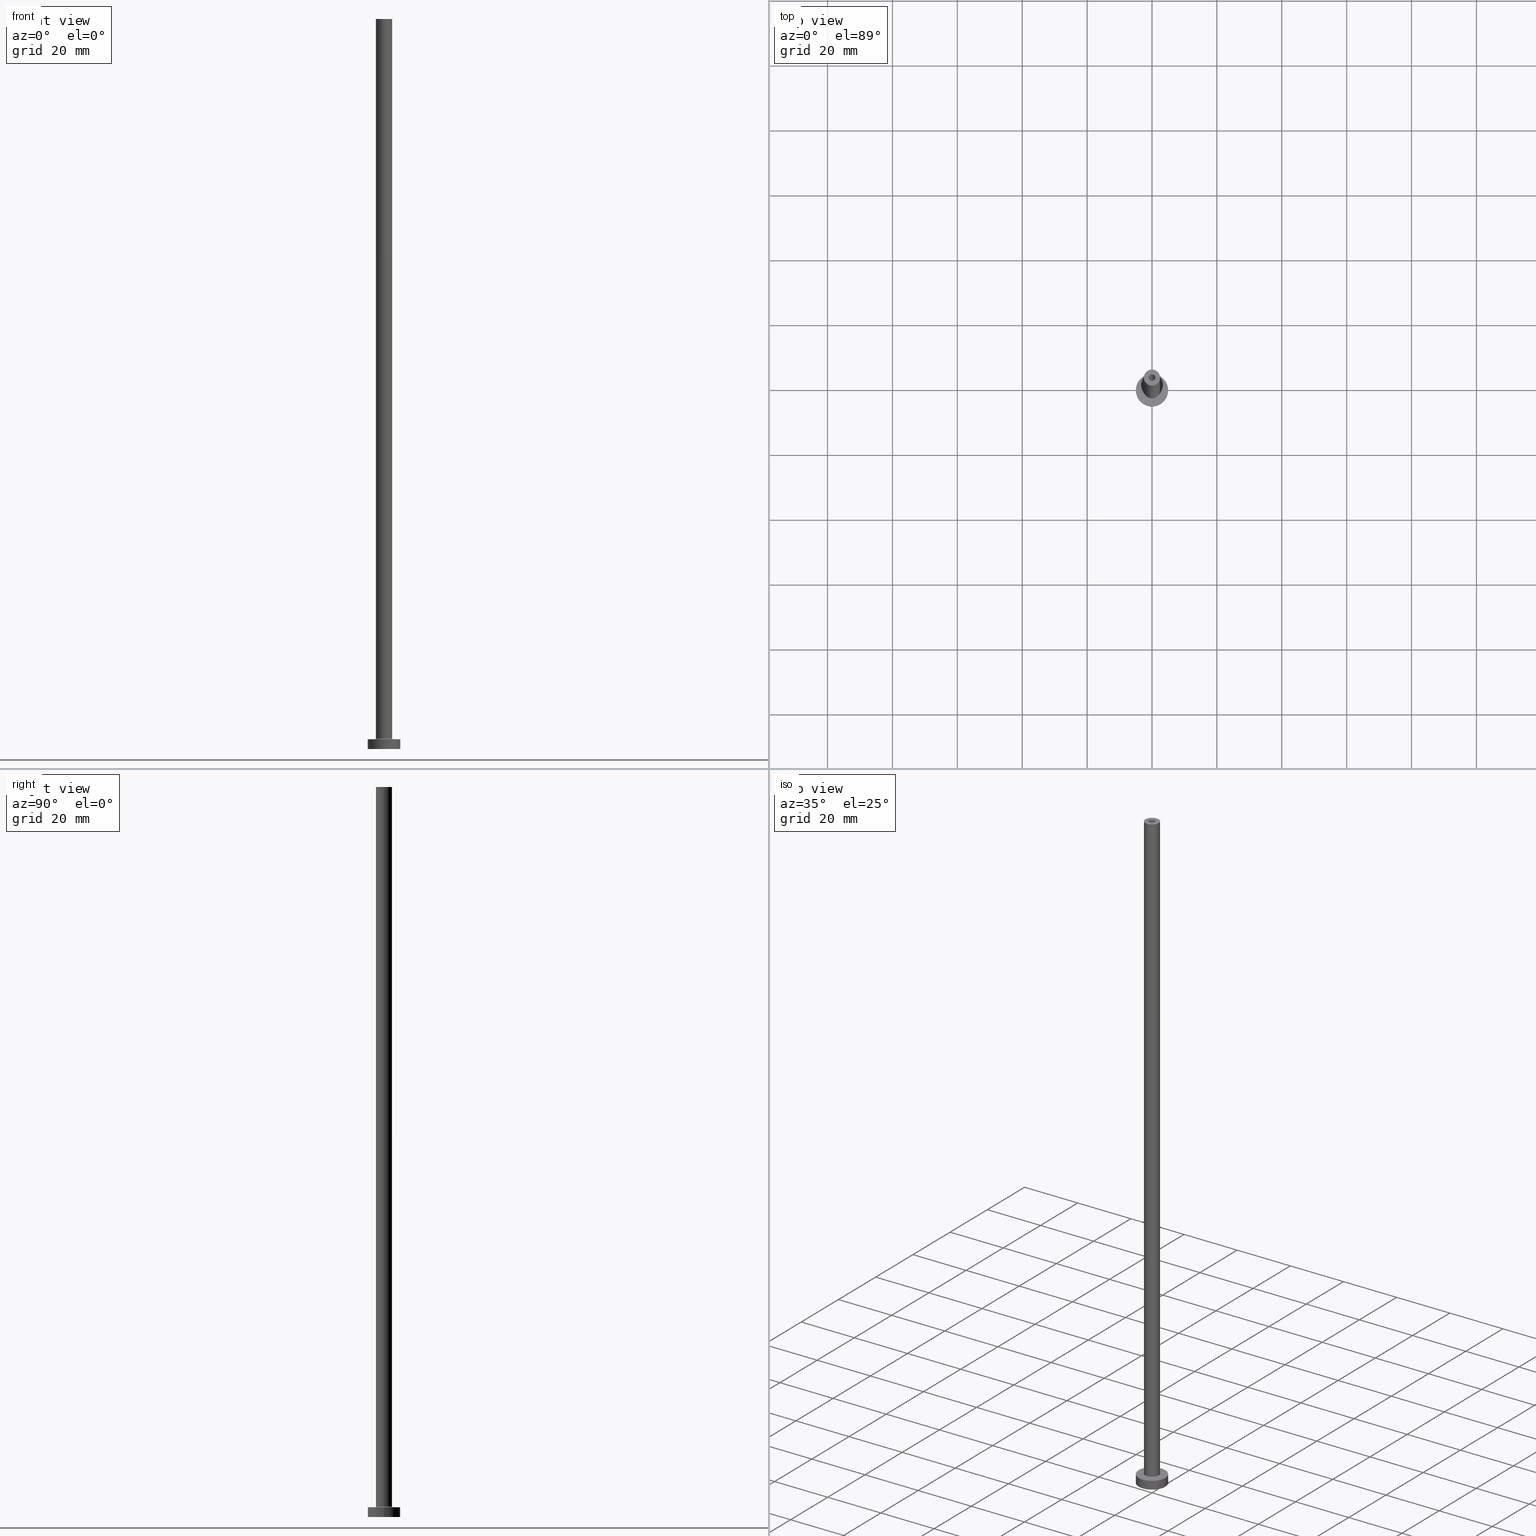
[diagram: canonical four-view strip — front | top / right | iso, engineering-drawing reading convention]
A machine part, canonical four-view strip (front | top / right | iso — engineering-drawing reading convention). The complete STEP part file that produces these views, byte-faithful:
ISO-10303-21;
HEADER;
FILE_DESCRIPTION (( 'STEP AP203' ),
    '1' );
FILE_NAME ('2feb.STEP',
    '2023-02-13T18:13:55',
    ( '' ),
    ( '' ),
    'SwSTEP 2.0',
    'SolidWorks 2019',
    '' );
FILE_SCHEMA (( 'CONFIG_CONTROL_DESIGN' ));
ENDSEC;

DATA;
#1 = AXIS2_PLACEMENT_3D ( 'NONE', #373, #50, #381 ) ;
#2 = DIRECTION ( 'NONE',  ( 0.000000000000000000, 0.000000000000000000, -1.000000000000000000 ) ) ;
#3 = AXIS2_PLACEMENT_3D ( 'NONE', #151, #295, #266 ) ;
#4 = CC_DESIGN_APPROVAL ( #297, ( #113 ) ) ;
#5 = APPROVAL_DATE_TIME ( #136, #297 ) ;
#6 = ORIENTED_EDGE ( 'NONE', *, *, #71, .T. ) ;
#7 = ADVANCED_FACE ( 'NONE', ( #75 ), #77, .F. ) ;
#8 = TOROIDAL_SURFACE ( 'NONE', #379, 2.799999999999999822, 0.2999999999999999889 ) ;
#9 = CIRCLE ( 'NONE', #39, 1.000000000000000000 ) ;
#10 = CARTESIAN_POINT ( 'NONE',  ( -1.000000000000000000, 0.000000000000000000, 225.0000000000000000 ) ) ;
#11 = DIRECTION ( 'NONE',  ( 0.000000000000000000, 0.000000000000000000, 1.000000000000000000 ) ) ;
#12 = CC_DESIGN_DATE_AND_TIME_ASSIGNMENT ( #422, #387, ( #267 ) ) ;
#13 = LINE ( 'NONE', #444, #212 ) ;
#14 = AXIS2_PLACEMENT_3D ( 'NONE', #447, #123, #420 ) ;
#15 = VERTEX_POINT ( 'NONE', #390 ) ;
#16 = CARTESIAN_POINT ( 'NONE',  ( -1.149999999999999911, 0.000000000000000000, 190.0000000000000000 ) ) ;
#17 = CARTESIAN_POINT ( 'NONE',  ( 5.000000000000000000, 6.123233995736766282E-16, 3.000000000000000000 ) ) ;
#18 = CARTESIAN_POINT ( 'NONE',  ( 5.000000000000000000, 6.123233995736766282E-16, 0.000000000000000000 ) ) ;
#19 = FACE_OUTER_BOUND ( 'NONE', #432, .T. ) ;
#20 = PERSON_AND_ORGANIZATION ( #180, #125 ) ;
#21 = CIRCLE ( 'NONE', #14, 2.799999999999999822 ) ;
#22 = CC_DESIGN_APPROVAL ( #423, ( #241 ) ) ;
#23 = FACE_OUTER_BOUND ( 'NONE', #178, .T. ) ;
#24 = CARTESIAN_POINT ( 'NONE',  ( 0.000000000000000000, 0.000000000000000000, 0.000000000000000000 ) ) ;
#25 = PERSON_AND_ORGANIZATION ( #180, #125 ) ;
#26 = ADVANCED_FACE ( 'NONE', ( #428, #211 ), #361, .F. ) ;
#27 = FACE_BOUND ( 'NONE', #351, .T. ) ;
#28 = COORDINATED_UNIVERSAL_TIME_OFFSET ( 1, 0, .AHEAD. ) ;
#29 = ADVANCED_FACE ( 'NONE', ( #132 ), #461, .T. ) ;
#30 = PERSON_AND_ORGANIZATION_ROLE ( 'creator' ) ;
#31 = ORIENTED_EDGE ( 'NONE', *, *, #367, .T. ) ;
#32 = CIRCLE ( 'NONE', #131, 2.500000000000000000 ) ;
#33 = DIRECTION ( 'NONE',  ( 1.000000000000000000, 0.000000000000000000, 0.000000000000000000 ) ) ;
#34 = EDGE_CURVE ( 'NONE', #231, #309, #255, .T. ) ;
#35 = DIRECTION ( 'NONE',  ( 1.000000000000000000, 0.000000000000000000, 0.000000000000000000 ) ) ;
#36 = VERTEX_POINT ( 'NONE', #18 ) ;
#37 = DIRECTION ( 'NONE',  ( 1.000000000000000000, 0.000000000000000000, 0.000000000000000000 ) ) ;
#38 = PERSON_AND_ORGANIZATION ( #180, #125 ) ;
#39 = AXIS2_PLACEMENT_3D ( 'NONE', #396, #410, #88 ) ;
#40 = ORIENTED_EDGE ( 'NONE', *, *, #57, .F. ) ;
#41 = ADVANCED_FACE ( 'NONE', ( #449 ), #254, .T. ) ;
#42 = CALENDAR_DATE ( 2023, 13, 2 ) ;
#43 = CARTESIAN_POINT ( 'NONE',  ( 1.000000000000000000, 1.224646799147353207E-16, 190.0000000000000000 ) ) ;
#44 = EDGE_LOOP ( 'NONE', ( #328, #439, #140, #101 ) ) ;
#45 = AXIS2_PLACEMENT_3D ( 'NONE', #325, #406, #213 ) ;
#46 = APPROVAL_PERSON_ORGANIZATION ( #38, #297, #429 ) ;
#47 = LINE ( 'NONE', #189, #456 ) ;
#48 = UNCERTAINTY_MEASURE_WITH_UNIT (LENGTH_MEASURE( 1.000000000000000082E-05 ), #166, 'distance_accuracy_value', 'NONE');
#49 = CARTESIAN_POINT ( 'NONE',  ( 0.000000000000000000, 0.000000000000000000, 0.000000000000000000 ) ) ;
#50 = DIRECTION ( 'NONE',  ( 0.000000000000000000, 0.000000000000000000, 1.000000000000000000 ) ) ;
#51 = LINE ( 'NONE', #335, #448 ) ;
#52 = DIRECTION ( 'NONE',  ( 0.000000000000000000, 0.000000000000000000, -1.000000000000000000 ) ) ;
#53 = DIRECTION ( 'NONE',  ( 0.000000000000000000, 0.000000000000000000, 1.000000000000000000 ) ) ;
#54 = DIRECTION ( 'NONE',  ( -1.000000000000000000, 0.000000000000000000, 0.000000000000000000 ) ) ;
#55 = CARTESIAN_POINT ( 'NONE',  ( 0.000000000000000000, 0.000000000000000000, 3.000000000000000000 ) ) ;
#56 = AXIS2_PLACEMENT_3D ( 'NONE', #265, #225, #33 ) ;
#57 = EDGE_CURVE ( 'NONE', #15, #110, #193, .T. ) ;
#58 = DIRECTION ( 'NONE',  ( -1.000000000000000000, 0.000000000000000000, 0.000000000000000000 ) ) ;
#59 = DIRECTION ( 'NONE',  ( -0.000000000000000000, -0.000000000000000000, -1.000000000000000000 ) ) ;
#60 = EDGE_LOOP ( 'NONE', ( #257, #179 ) ) ;
#61 = CALENDAR_DATE ( 2023, 13, 2 ) ;
#62 = DIRECTION ( 'NONE',  ( 1.000000000000000000, 0.000000000000000000, 0.000000000000000000 ) ) ;
#63 = DIRECTION ( 'NONE',  ( 0.000000000000000000, 0.000000000000000000, 1.000000000000000000 ) ) ;
#64 = PERSON_AND_ORGANIZATION_ROLE ( 'design_owner' ) ;
#65 = CARTESIAN_POINT ( 'NONE',  ( 0.000000000000000000, 0.000000000000000000, 190.0000000000000000 ) ) ;
#66 = DIRECTION ( 'NONE',  ( -1.000000000000000000, 0.000000000000000000, 0.000000000000000000 ) ) ;
#67 = CARTESIAN_POINT ( 'NONE',  ( 1.000000000000000000, 1.224646799147353207E-16, 225.0000000000000000 ) ) ;
#68 = ORIENTED_EDGE ( 'NONE', *, *, #362, .T. ) ;
#69 = DIRECTION ( 'NONE',  ( 0.000000000000000000, 0.000000000000000000, -1.000000000000000000 ) ) ;
#70 = AXIS2_PLACEMENT_3D ( 'NONE', #376, #53, #192 ) ;
#71 = EDGE_CURVE ( 'NONE', #433, #277, #51, .T. ) ;
#72 = ORIENTED_EDGE ( 'NONE', *, *, #259, .F. ) ;
#73 = CARTESIAN_POINT ( 'NONE',  ( 0.000000000000000000, 0.000000000000000000, 225.0000000000000000 ) ) ;
#74 = CARTESIAN_POINT ( 'NONE',  ( 5.000000000000000000, 6.123233995736766282E-16, 3.000000000000000000 ) ) ;
#75 = FACE_OUTER_BOUND ( 'NONE', #44, .T. ) ;
#76 = ORIENTED_EDGE ( 'NONE', *, *, #165, .T. ) ;
#77 = TOROIDAL_SURFACE ( 'NONE', #272, 2.799999999999999822, 0.2999999999999999889 ) ;
#78 = DIRECTION ( 'NONE',  ( 0.000000000000000000, 0.000000000000000000, 1.000000000000000000 ) ) ;
#79 = CARTESIAN_POINT ( 'NONE',  ( 0.000000000000000000, 0.000000000000000000, 3.299999999999997158 ) ) ;
#80 = AXIS2_PLACEMENT_3D ( 'NONE', #355, #168, #2 ) ;
#81 = VERTEX_POINT ( 'NONE', #345 ) ;
#82 = COORDINATED_UNIVERSAL_TIME_OFFSET ( 1, 0, .AHEAD. ) ;
#83 = DIRECTION ( 'NONE',  ( 1.000000000000000000, 0.000000000000000000, -0.000000000000000000 ) ) ;
#84 = DIRECTION ( 'NONE',  ( 1.000000000000000000, 0.000000000000000000, -0.000000000000000000 ) ) ;
#85 = DIRECTION ( 'NONE',  ( 1.000000000000000000, 0.000000000000000000, 0.000000000000000000 ) ) ;
#86 = DIRECTION ( 'NONE',  ( -1.000000000000000000, 0.000000000000000000, 0.000000000000000000 ) ) ;
#87 = DIRECTION ( 'NONE',  ( 0.000000000000000000, 0.000000000000000000, 1.000000000000000000 ) ) ;
#88 = DIRECTION ( 'NONE',  ( 1.000000000000000000, 0.000000000000000000, 0.000000000000000000 ) ) ;
#89 = CARTESIAN_POINT ( 'NONE',  ( 0.000000000000000000, 0.000000000000000000, 3.299999999999997158 ) ) ;
#90 = CIRCLE ( 'NONE', #369, 1.149999999999999911 ) ;
#91 = VERTEX_POINT ( 'NONE', #269 ) ;
#92 = DIRECTION ( 'NONE',  ( 1.000000000000000000, 0.000000000000000000, 0.000000000000000000 ) ) ;
#93 = CYLINDRICAL_SURFACE ( 'NONE', #268, 1.000000000000000000 ) ;
#94 = ORIENTED_EDGE ( 'NONE', *, *, #234, .T. ) ;
#95 = DIRECTION ( 'NONE',  ( -1.000000000000000000, 0.000000000000000000, 0.000000000000000000 ) ) ;
#96 = CIRCLE ( 'NONE', #80, 0.2999999999999999334 ) ;
#97 = DIRECTION ( 'NONE',  ( 1.000000000000000000, 0.000000000000000000, 0.000000000000000000 ) ) ;
#98 = CARTESIAN_POINT ( 'NONE',  ( 0.000000000000000000, 0.000000000000000000, 0.000000000000000000 ) ) ;
#99 = VECTOR ( 'NONE', #135, 1000.000000000000000 ) ;
#100 = ORIENTED_EDGE ( 'NONE', *, *, #171, .F. ) ;
#101 = ORIENTED_EDGE ( 'NONE', *, *, #340, .F. ) ;
#102 = ORIENTED_EDGE ( 'NONE', *, *, #120, .F. ) ;
#103 = DIRECTION ( 'NONE',  ( 0.000000000000000000, 0.000000000000000000, 1.000000000000000000 ) ) ;
#104 = VERTEX_POINT ( 'NONE', #67 ) ;
#105 = CARTESIAN_POINT ( 'NONE',  ( 0.000000000000000000, 0.000000000000000000, 190.0000000000000000 ) ) ;
#106 = EDGE_LOOP ( 'NONE', ( #249, #378, #452, #236 ) ) ;
#107 = ORIENTED_EDGE ( 'NONE', *, *, #34, .T. ) ;
#108 = ADVANCED_FACE ( 'NONE', ( #23 ), #202, .T. ) ;
#109 = ORIENTED_EDGE ( 'NONE', *, *, #366, .T. ) ;
#110 = VERTEX_POINT ( 'NONE', #446 ) ;
#111 = AXIS2_PLACEMENT_3D ( 'NONE', #49, #87, #227 ) ;
#112 = EDGE_LOOP ( 'NONE', ( #102, #153, #237, #294 ) ) ;
#113 = SECURITY_CLASSIFICATION ( '', '', #435 ) ;
#114 = EDGE_CURVE ( 'NONE', #134, #81, #330, .T. ) ;
#115 = PRODUCT_DEFINITION_SHAPE ( 'NONE', 'NONE',  #267 ) ;
#116 = FACE_BOUND ( 'NONE', #245, .T. ) ;
#117 = AXIS2_PLACEMENT_3D ( 'NONE', #105, #289, #35 ) ;
#118 = CARTESIAN_POINT ( 'NONE',  ( -2.500000000000000000, 0.000000000000000000, 225.0000000000000000 ) ) ;
#119 = DIRECTION ( 'NONE',  ( -0.000000000000000000, -0.000000000000000000, -1.000000000000000000 ) ) ;
#120 = EDGE_CURVE ( 'NONE', #183, #433, #139, .T. ) ;
#121 = DIRECTION ( 'NONE',  ( 0.000000000000000000, 0.000000000000000000, 1.000000000000000000 ) ) ;
#122 = CYLINDRICAL_SURFACE ( 'NONE', #251, 1.149999999999999911 ) ;
#123 = DIRECTION ( 'NONE',  ( -0.000000000000000000, -0.000000000000000000, -1.000000000000000000 ) ) ;
#124 = ORIENTED_EDGE ( 'NONE', *, *, #214, .F. ) ;
#125 = ORGANIZATION ( 'NEUR�EN�', 'NEUR�EN�', '' ) ;
#126 = COORDINATED_UNIVERSAL_TIME_OFFSET ( 1, 0, .AHEAD. ) ;
#127 = CARTESIAN_POINT ( 'NONE',  ( 0.000000000000000000, 0.000000000000000000, 3.299999999999997158 ) ) ;
#128 = APPROVAL_STATUS ( 'not_yet_approved' ) ;
#129 = ADVANCED_BREP_SHAPE_REPRESENTATION ( '2feb', ( #391, #111 ), #306 ) ;
#130 = APPROVAL_DATE_TIME ( #457, #389 ) ;
#131 = AXIS2_PLACEMENT_3D ( 'NONE', #141, #210, #37 ) ;
#132 = FACE_OUTER_BOUND ( 'NONE', #442, .T. ) ;
#133 = ORIENTED_EDGE ( 'NONE', *, *, #171, .T. ) ;
#134 = VERTEX_POINT ( 'NONE', #188 ) ;
#135 = DIRECTION ( 'NONE',  ( -0.000000000000000000, -0.000000000000000000, -1.000000000000000000 ) ) ;
#136 = DATE_AND_TIME ( #238, #175 ) ;
#137 = PLANE ( 'NONE',  #440 ) ;
#138 = CARTESIAN_POINT ( 'NONE',  ( 0.000000000000000000, 0.000000000000000000, 3.000000000000000000 ) ) ;
#139 = CIRCLE ( 'NONE', #1, 5.000000000000000000 ) ;
#140 = ORIENTED_EDGE ( 'NONE', *, *, #367, .F. ) ;
#141 = CARTESIAN_POINT ( 'NONE',  ( 0.000000000000000000, 0.000000000000000000, 3.299999999999997158 ) ) ;
#142 = CARTESIAN_POINT ( 'NONE',  ( -2.799999999999999822, 3.429011037612589276E-16, 2.999999999999998668 ) ) ;
#143 = ADVANCED_FACE ( 'NONE', ( #222 ), #122, .F. ) ;
#144 = VECTOR ( 'NONE', #69, 1000.000000000000000 ) ;
#145 = PERSON_AND_ORGANIZATION_ROLE ( 'creator' ) ;
#146 = DIRECTION ( 'NONE',  ( -1.000000000000000000, 0.000000000000000000, 0.000000000000000000 ) ) ;
#147 = EDGE_LOOP ( 'NONE', ( #292, #109, #453, #72 ) ) ;
#148 = DIRECTION ( 'NONE',  ( 0.000000000000000000, 0.000000000000000000, -1.000000000000000000 ) ) ;
#149 = CARTESIAN_POINT ( 'NONE',  ( -5.000000000000000000, 0.000000000000000000, 3.000000000000000000 ) ) ;
#150 = AXIS2_PLACEMENT_3D ( 'NONE', #302, #11, #299 ) ;
#151 = CARTESIAN_POINT ( 'NONE',  ( 0.000000000000000000, 0.000000000000000000, 225.0000000000000000 ) ) ;
#152 = EDGE_CURVE ( 'NONE', #169, #231, #191, .T. ) ;
#153 = ORIENTED_EDGE ( 'NONE', *, *, #436, .T. ) ;
#154 = FACE_OUTER_BOUND ( 'NONE', #293, .T. ) ;
#155 = DIRECTION ( 'NONE',  ( -0.000000000000000000, -0.000000000000000000, -1.000000000000000000 ) ) ;
#156 = CIRCLE ( 'NONE', #284, 1.000000000000000000 ) ;
#157 = CARTESIAN_POINT ( 'NONE',  ( 0.000000000000000000, 0.000000000000000000, 190.0000000000000000 ) ) ;
#158 = DIRECTION ( 'NONE',  ( 0.000000000000000000, 0.000000000000000000, -1.000000000000000000 ) ) ;
#159 = CARTESIAN_POINT ( 'NONE',  ( -1.000000000000000000, 0.000000000000000000, 190.0000000000000000 ) ) ;
#160 = CIRCLE ( 'NONE', #424, 1.000000000000000000 ) ;
#161 = CALENDAR_DATE ( 2023, 13, 2 ) ;
#162 = EDGE_CURVE ( 'NONE', #277, #36, #275, .T. ) ;
#163 = EDGE_CURVE ( 'NONE', #81, #110, #368, .T. ) ;
#164 = ORIENTED_EDGE ( 'NONE', *, *, #418, .T. ) ;
#165 = EDGE_CURVE ( 'NONE', #134, #15, #415, .T. ) ;
#166 =( LENGTH_UNIT ( ) NAMED_UNIT ( * ) SI_UNIT ( .MILLI., .METRE. ) );
#167 = PERSON_AND_ORGANIZATION ( #180, #125 ) ;
#168 = DIRECTION ( 'NONE',  ( 0.000000000000000000, -1.000000000000000000, 0.000000000000000000 ) ) ;
#169 = VERTEX_POINT ( 'NONE', #337 ) ;
#170 = ORIENTED_EDGE ( 'NONE', *, *, #162, .T. ) ;
#171 = EDGE_CURVE ( 'NONE', #309, #231, #156, .T. ) ;
#172 = ORIENTED_EDGE ( 'NONE', *, *, #418, .F. ) ;
#173 = DATE_AND_TIME ( #42, #286 ) ;
#174 = AXIS2_PLACEMENT_3D ( 'NONE', #197, #346, #334 ) ;
#175 = LOCAL_TIME ( 19, 13, 55.00000000000000000, #82 ) ;
#176 = DIRECTION ( 'NONE',  ( -0.000000000000000000, -0.000000000000000000, -1.000000000000000000 ) ) ;
#177 = DIRECTION ( 'NONE',  ( -1.000000000000000000, 1.224646799147353207E-16, 0.000000000000000000 ) ) ;
#178 = EDGE_LOOP ( 'NONE', ( #228, #76, #397, #347 ) ) ;
#179 = ORIENTED_EDGE ( 'NONE', *, *, #114, .T. ) ;
#180 = PERSON ( 'NEUR�EN�', 'NEUR�EN�', 'NEUR�EN�', ('NEUR�EN�'), ('NEUR�EN�'), ('NEUR�EN�') ) ;
#181 = FACE_BOUND ( 'NONE', #358, .T. ) ;
#182 = AXIS2_PLACEMENT_3D ( 'NONE', #138, #426, #58 ) ;
#183 = VERTEX_POINT ( 'NONE', #17 ) ;
#184 = AXIS2_PLACEMENT_3D ( 'NONE', #55, #119, #223 ) ;
#185 = CARTESIAN_POINT ( 'NONE',  ( 0.000000000000000000, 0.000000000000000000, 225.0000000000000000 ) ) ;
#186 = PRODUCT ( '2feb', '2feb', '', ( #372 ) ) ;
#187 = ADVANCED_FACE ( 'NONE', ( #253 ), #216, .T. ) ;
#188 = CARTESIAN_POINT ( 'NONE',  ( 2.500000000000000000, 3.061616997868383141E-16, 225.0000000000000000 ) ) ;
#189 = CARTESIAN_POINT ( 'NONE',  ( 1.149999999999999911, 1.408343819019456028E-16, 193.2526911934581051 ) ) ;
#190 = DIRECTION ( 'NONE',  ( 1.000000000000000000, 0.000000000000000000, 0.000000000000000000 ) ) ;
#191 = LINE ( 'NONE', #10, #226 ) ;
#192 = DIRECTION ( 'NONE',  ( 1.000000000000000000, 0.000000000000000000, -0.000000000000000000 ) ) ;
#193 = CIRCLE ( 'NONE', #313, 2.500000000000000000 ) ;
#194 = CC_DESIGN_PERSON_AND_ORGANIZATION_ASSIGNMENT ( #278, #30, ( #267 ) ) ;
#195 = DIRECTION ( 'NONE',  ( 0.000000000000000000, 0.000000000000000000, 1.000000000000000000 ) ) ;
#196 = DATE_AND_TIME ( #61, #414 ) ;
#197 = CARTESIAN_POINT ( 'NONE',  ( 0.000000000000000000, 0.000000000000000000, 0.000000000000000000 ) ) ;
#198 = APPLICATION_PROTOCOL_DEFINITION ( 'international standard', 'config_control_design', 1994, #409 ) ;
#199 = APPROVAL_STATUS ( 'not_yet_approved' ) ;
#200 = EDGE_CURVE ( 'NONE', #91, #279, #90, .T. ) ;
#201 = ORIENTED_EDGE ( 'NONE', *, *, #340, .T. ) ;
#202 = CYLINDRICAL_SURFACE ( 'NONE', #365, 2.500000000000000000 ) ;
#203 = FACE_OUTER_BOUND ( 'NONE', #326, .T. ) ;
#204 = CC_DESIGN_APPROVAL ( #389, ( #267 ) ) ;
#205 = ORIENTED_EDGE ( 'NONE', *, *, #120, .T. ) ;
#206 = CARTESIAN_POINT ( 'NONE',  ( 2.799999999999999822, 0.000000000000000000, 2.999999999999998668 ) ) ;
#207 = CC_DESIGN_DATE_AND_TIME_ASSIGNMENT ( #173, #243, ( #113 ) ) ;
#208 = ORIENTED_EDGE ( 'NONE', *, *, #377, .T. ) ;
#209 = EDGE_LOOP ( 'NONE', ( #68, #370, #252, #388 ) ) ;
#210 = DIRECTION ( 'NONE',  ( 0.000000000000000000, 0.000000000000000000, 1.000000000000000000 ) ) ;
#211 = FACE_OUTER_BOUND ( 'NONE', #262, .T. ) ;
#212 = VECTOR ( 'NONE', #264, 1000.000000000000000 ) ;
#213 = DIRECTION ( 'NONE',  ( -1.000000000000000000, 0.000000000000000000, 0.000000000000000000 ) ) ;
#214 = EDGE_CURVE ( 'NONE', #36, #277, #235, .T. ) ;
#215 = SHAPE_DEFINITION_REPRESENTATION ( #115, #129 ) ;
#216 = CYLINDRICAL_SURFACE ( 'NONE', #3, 2.500000000000000000 ) ;
#217 = AXIS2_PLACEMENT_3D ( 'NONE', #261, #296, #333 ) ;
#218 = APPROVAL_PERSON_ORGANIZATION ( #230, #423, #383 ) ;
#219 = ADVANCED_FACE ( 'NONE', ( #19 ), #8, .F. ) ;
#220 = CARTESIAN_POINT ( 'NONE',  ( 0.000000000000000000, 0.000000000000000000, 225.0000000000000000 ) ) ;
#221 = CARTESIAN_POINT ( 'NONE',  ( 0.000000000000000000, 0.000000000000000000, 3.000000000000000000 ) ) ;
#222 = FACE_OUTER_BOUND ( 'NONE', #419, .T. ) ;
#223 = DIRECTION ( 'NONE',  ( 1.000000000000000000, 0.000000000000000000, 0.000000000000000000 ) ) ;
#224 = ORIENTED_EDGE ( 'NONE', *, *, #398, .T. ) ;
#225 = DIRECTION ( 'NONE',  ( 0.000000000000000000, 0.000000000000000000, 1.000000000000000000 ) ) ;
#226 = VECTOR ( 'NONE', #158, 1000.000000000000000 ) ;
#227 = DIRECTION ( 'NONE',  ( 1.000000000000000000, 0.000000000000000000, 0.000000000000000000 ) ) ;
#228 = ORIENTED_EDGE ( 'NONE', *, *, #114, .F. ) ;
#229 = CC_DESIGN_PERSON_AND_ORGANIZATION_ASSIGNMENT ( #167, #404, ( #113 ) ) ;
#230 = PERSON_AND_ORGANIZATION ( #180, #125 ) ;
#231 = VERTEX_POINT ( 'NONE', #159 ) ;
#232 = DIRECTION ( 'NONE',  ( 1.000000000000000000, 0.000000000000000000, 0.000000000000000000 ) ) ;
#233 = CLOSED_SHELL ( 'NONE', ( #303, #307, #7, #108, #41, #29, #425, #318, #187, #382, #219, #143, #26, #250 ) ) ;
#234 = EDGE_CURVE ( 'NONE', #279, #91, #405, .T. ) ;
#235 = CIRCLE ( 'NONE', #258, 5.000000000000000000 ) ;
#236 = ORIENTED_EDGE ( 'NONE', *, *, #430, .T. ) ;
#237 = ORIENTED_EDGE ( 'NONE', *, *, #214, .T. ) ;
#238 = CALENDAR_DATE ( 2023, 13, 2 ) ;
#239 = CIRCLE ( 'NONE', #184, 2.799999999999999822 ) ;
#240 = DIRECTION ( 'NONE',  ( 1.000000000000000000, 0.000000000000000000, 0.000000000000000000 ) ) ;
#241 = PRODUCT_DEFINITION_FORMATION_WITH_SPECIFIED_SOURCE ( 'LIBOVOLN�', '', #186, .NOT_KNOWN. ) ;
#242 = VERTEX_POINT ( 'NONE', #16 ) ;
#243 = DATE_TIME_ROLE ( 'classification_date' ) ;
#244 = CARTESIAN_POINT ( 'NONE',  ( 0.000000000000000000, 0.000000000000000000, 0.000000000000000000 ) ) ;
#245 = EDGE_LOOP ( 'NONE', ( #317, #320 ) ) ;
#246 = CARTESIAN_POINT ( 'NONE',  ( -1.149999999999999911, 0.000000000000000000, 0.000000000000000000 ) ) ;
#247 = CARTESIAN_POINT ( 'NONE',  ( 0.000000000000000000, 0.000000000000000000, 225.0000000000000000 ) ) ;
#248 = PERSON_AND_ORGANIZATION_ROLE ( 'design_supplier' ) ;
#249 = ORIENTED_EDGE ( 'NONE', *, *, #165, .F. ) ;
#250 = ADVANCED_FACE ( 'NONE', ( #154 ), #93, .F. ) ;
#251 = AXIS2_PLACEMENT_3D ( 'NONE', #260, #52, #54 ) ;
#252 = ORIENTED_EDGE ( 'NONE', *, *, #34, .F. ) ;
#253 = FACE_OUTER_BOUND ( 'NONE', #106, .T. ) ;
#254 = CYLINDRICAL_SURFACE ( 'NONE', #392, 5.000000000000000000 ) ;
#255 = CIRCLE ( 'NONE', #342, 1.000000000000000000 ) ;
#256 = DIRECTION ( 'NONE',  ( 1.000000000000000000, 0.000000000000000000, 0.000000000000000000 ) ) ;
#257 = ORIENTED_EDGE ( 'NONE', *, *, #350, .T. ) ;
#258 = AXIS2_PLACEMENT_3D ( 'NONE', #98, #63, #97 ) ;
#259 = EDGE_CURVE ( 'NONE', #242, #279, #316, .T. ) ;
#260 = CARTESIAN_POINT ( 'NONE',  ( 0.000000000000000000, 0.000000000000000000, 193.2526911934581051 ) ) ;
#261 = CARTESIAN_POINT ( 'NONE',  ( 0.000000000000000000, 0.000000000000000000, 3.000000000000000000 ) ) ;
#262 = EDGE_LOOP ( 'NONE', ( #349, #172 ) ) ;
#263 = CARTESIAN_POINT ( 'NONE',  ( 0.000000000000000000, 0.000000000000000000, 190.0000000000000000 ) ) ;
#264 = DIRECTION ( 'NONE',  ( 0.000000000000000000, 0.000000000000000000, -1.000000000000000000 ) ) ;
#265 = CARTESIAN_POINT ( 'NONE',  ( 0.000000000000000000, 0.000000000000000000, 190.0000000000000000 ) ) ;
#266 = DIRECTION ( 'NONE',  ( -1.000000000000000000, 0.000000000000000000, 0.000000000000000000 ) ) ;
#267 = PRODUCT_DEFINITION ( 'NEZN�M�', '', #241, #411 ) ;
#268 = AXIS2_PLACEMENT_3D ( 'NONE', #220, #273, #66 ) ;
#269 = CARTESIAN_POINT ( 'NONE',  ( 1.149999999999999911, 1.408343819019456028E-16, 0.000000000000000000 ) ) ;
#270 = DIRECTION ( 'NONE',  ( 0.000000000000000000, 0.000000000000000000, 1.000000000000000000 ) ) ;
#271 = APPROVAL_ROLE ( '' ) ;
#272 = AXIS2_PLACEMENT_3D ( 'NONE', #79, #393, #403 ) ;
#273 = DIRECTION ( 'NONE',  ( 0.000000000000000000, 0.000000000000000000, -1.000000000000000000 ) ) ;
#274 = VERTEX_POINT ( 'NONE', #206 ) ;
#275 = CIRCLE ( 'NONE', #150, 5.000000000000000000 ) ;
#276 = COORDINATED_UNIVERSAL_TIME_OFFSET ( 1, 0, .AHEAD. ) ;
#277 = VERTEX_POINT ( 'NONE', #407 ) ;
#278 = PERSON_AND_ORGANIZATION ( #180, #125 ) ;
#279 = VERTEX_POINT ( 'NONE', #246 ) ;
#280 = CARTESIAN_POINT ( 'NONE',  ( -2.799999999999999822, 3.429011037612588783E-16, 3.299999999999997158 ) ) ;
#281 = EDGE_CURVE ( 'NONE', #104, #169, #160, .T. ) ;
#282 = AXIS2_PLACEMENT_3D ( 'NONE', #185, #341, #256 ) ;
#283 = PERSON_AND_ORGANIZATION ( #180, #125 ) ;
#284 = AXIS2_PLACEMENT_3D ( 'NONE', #157, #121, #92 ) ;
#285 = CARTESIAN_POINT ( 'NONE',  ( 1.149999999999999911, 1.408343819019456028E-16, 190.0000000000000000 ) ) ;
#286 = LOCAL_TIME ( 19, 13, 55.00000000000000000, #459 ) ;
#287 = ORIENTED_EDGE ( 'NONE', *, *, #200, .F. ) ;
#288 = FACE_OUTER_BOUND ( 'NONE', #209, .T. ) ;
#289 = DIRECTION ( 'NONE',  ( 0.000000000000000000, 0.000000000000000000, 1.000000000000000000 ) ) ;
#290 = EDGE_CURVE ( 'NONE', #242, #329, #413, .T. ) ;
#291 = CYLINDRICAL_SURFACE ( 'NONE', #431, 1.149999999999999911 ) ;
#292 = ORIENTED_EDGE ( 'NONE', *, *, #290, .T. ) ;
#293 = EDGE_LOOP ( 'NONE', ( #434, #400, #348, #100 ) ) ;
#294 = ORIENTED_EDGE ( 'NONE', *, *, #71, .F. ) ;
#295 = DIRECTION ( 'NONE',  ( -0.000000000000000000, -0.000000000000000000, -1.000000000000000000 ) ) ;
#296 = DIRECTION ( 'NONE',  ( 0.000000000000000000, 0.000000000000000000, 1.000000000000000000 ) ) ;
#297 = APPROVAL ( #319, 'NEUR�EN�' ) ;
#298 = APPLICATION_CONTEXT ( 'configuration controlled 3d designs of mechanical parts and assemblies' ) ;
#299 = DIRECTION ( 'NONE',  ( 1.000000000000000000, 0.000000000000000000, 0.000000000000000000 ) ) ;
#300 = FACE_OUTER_BOUND ( 'NONE', #60, .T. ) ;
#301 = AXIS2_PLACEMENT_3D ( 'NONE', #312, #305, #83 ) ;
#302 = CARTESIAN_POINT ( 'NONE',  ( 0.000000000000000000, 0.000000000000000000, 0.000000000000000000 ) ) ;
#303 = ADVANCED_FACE ( 'NONE', ( #288 ), #402, .F. ) ;
#304 = CARTESIAN_POINT ( 'NONE',  ( 2.500000000000000000, 3.061616997868383141E-16, 225.0000000000000000 ) ) ;
#305 = DIRECTION ( 'NONE',  ( 0.000000000000000000, 0.000000000000000000, 1.000000000000000000 ) ) ;
#306 =( GEOMETRIC_REPRESENTATION_CONTEXT ( 3 ) GLOBAL_UNCERTAINTY_ASSIGNED_CONTEXT ( ( #48 ) ) GLOBAL_UNIT_ASSIGNED_CONTEXT ( ( #166, #357, #445 ) ) REPRESENTATION_CONTEXT ( 'NONE', 'WORKASPACE' ) );
#307 = ADVANCED_FACE ( 'NONE', ( #327 ), #291, .F. ) ;
#308 = ORIENTED_EDGE ( 'NONE', *, *, #436, .F. ) ;
#309 = VERTEX_POINT ( 'NONE', #43 ) ;
#310 = DIRECTION ( 'NONE',  ( -0.000000000000000000, -0.000000000000000000, -1.000000000000000000 ) ) ;
#311 = VERTEX_POINT ( 'NONE', #142 ) ;
#312 = CARTESIAN_POINT ( 'NONE',  ( 0.000000000000000000, 0.000000000000000000, 3.000000000000000000 ) ) ;
#313 = AXIS2_PLACEMENT_3D ( 'NONE', #89, #374, #371 ) ;
#314 = APPROVAL_PERSON_ORGANIZATION ( #25, #389, #271 ) ;
#315 = EDGE_LOOP ( 'NONE', ( #107, #133 ) ) ;
#316 = LINE ( 'NONE', #394, #144 ) ;
#317 = ORIENTED_EDGE ( 'NONE', *, *, #362, .F. ) ;
#318 = ADVANCED_FACE ( 'NONE', ( #181, #322 ), #137, .F. ) ;
#319 = APPROVAL_STATUS ( 'not_yet_approved' ) ;
#320 = ORIENTED_EDGE ( 'NONE', *, *, #281, .F. ) ;
#321 = ORIENTED_EDGE ( 'NONE', *, *, #259, .T. ) ;
#322 = FACE_OUTER_BOUND ( 'NONE', #401, .T. ) ;
#323 = DIRECTION ( 'NONE',  ( 1.224646799147353207E-16, 1.000000000000000000, -0.000000000000000000 ) ) ;
#324 = CIRCLE ( 'NONE', #395, 2.500000000000000000 ) ;
#325 = CARTESIAN_POINT ( 'NONE',  ( 0.000000000000000000, 0.000000000000000000, 225.0000000000000000 ) ) ;
#326 = EDGE_LOOP ( 'NONE', ( #208, #205 ) ) ;
#327 = FACE_OUTER_BOUND ( 'NONE', #147, .T. ) ;
#328 = ORIENTED_EDGE ( 'NONE', *, *, #430, .F. ) ;
#329 = VERTEX_POINT ( 'NONE', #285 ) ;
#330 = CIRCLE ( 'NONE', #282, 2.500000000000000000 ) ;
#331 = LOCAL_TIME ( 19, 13, 55.00000000000000000, #28 ) ;
#332 = DIRECTION ( 'NONE',  ( 0.000000000000000000, 0.000000000000000000, -1.000000000000000000 ) ) ;
#333 = DIRECTION ( 'NONE',  ( 1.000000000000000000, 0.000000000000000000, 0.000000000000000000 ) ) ;
#334 = DIRECTION ( 'NONE',  ( 1.000000000000000000, 0.000000000000000000, 0.000000000000000000 ) ) ;
#335 = CARTESIAN_POINT ( 'NONE',  ( -5.000000000000000000, 0.000000000000000000, 3.000000000000000000 ) ) ;
#336 = AXIS2_PLACEMENT_3D ( 'NONE', #65, #455, #356 ) ;
#337 = CARTESIAN_POINT ( 'NONE',  ( -1.000000000000000000, 0.000000000000000000, 225.0000000000000000 ) ) ;
#338 = CC_DESIGN_PERSON_AND_ORGANIZATION_ASSIGNMENT ( #386, #64, ( #186 ) ) ;
#339 = CIRCLE ( 'NONE', #56, 1.149999999999999911 ) ;
#340 = EDGE_CURVE ( 'NONE', #15, #274, #96, .T. ) ;
#341 = DIRECTION ( 'NONE',  ( 0.000000000000000000, 0.000000000000000000, 1.000000000000000000 ) ) ;
#342 = AXIS2_PLACEMENT_3D ( 'NONE', #263, #195, #190 ) ;
#343 = APPROVAL_DATE_TIME ( #196, #423 ) ;
#344 = VECTOR ( 'NONE', #375, 1000.000000000000000 ) ;
#345 = CARTESIAN_POINT ( 'NONE',  ( -2.500000000000000000, 0.000000000000000000, 225.0000000000000000 ) ) ;
#346 = DIRECTION ( 'NONE',  ( -0.000000000000000000, -0.000000000000000000, -1.000000000000000000 ) ) ;
#347 = ORIENTED_EDGE ( 'NONE', *, *, #163, .F. ) ;
#348 = ORIENTED_EDGE ( 'NONE', *, *, #152, .T. ) ;
#349 = ORIENTED_EDGE ( 'NONE', *, *, #290, .F. ) ;
#350 = EDGE_CURVE ( 'NONE', #81, #134, #324, .T. ) ;
#351 = EDGE_LOOP ( 'NONE', ( #31, #224 ) ) ;
#352 = CC_DESIGN_PERSON_AND_ORGANIZATION_ASSIGNMENT ( #283, #248, ( #241 ) ) ;
#353 = LOCAL_TIME ( 19, 13, 55.00000000000000000, #126 ) ;
#354 = PLANE ( 'NONE',  #301 ) ;
#355 = CARTESIAN_POINT ( 'NONE',  ( 2.799999999999999822, 0.000000000000000000, 3.299999999999997158 ) ) ;
#356 = DIRECTION ( 'NONE',  ( 1.000000000000000000, 0.000000000000000000, -0.000000000000000000 ) ) ;
#357 =( NAMED_UNIT ( * ) PLANE_ANGLE_UNIT ( ) SI_UNIT ( $, .RADIAN. ) );
#358 = EDGE_LOOP ( 'NONE', ( #384, #287 ) ) ;
#359 = DIRECTION ( 'NONE',  ( 0.000000000000000000, 0.000000000000000000, 1.000000000000000000 ) ) ;
#360 = CIRCLE ( 'NONE', #451, 0.2999999999999999334 ) ;
#361 = PLANE ( 'NONE',  #336 ) ;
#362 = EDGE_CURVE ( 'NONE', #169, #104, #9, .T. ) ;
#363 = ORIENTED_EDGE ( 'NONE', *, *, #450, .F. ) ;
#364 = LINE ( 'NONE', #74, #99 ) ;
#365 = AXIS2_PLACEMENT_3D ( 'NONE', #247, #176, #95 ) ;
#366 = EDGE_CURVE ( 'NONE', #329, #91, #47, .T. ) ;
#367 = EDGE_CURVE ( 'NONE', #274, #311, #239, .T. ) ;
#368 = LINE ( 'NONE', #118, #421 ) ;
#369 = AXIS2_PLACEMENT_3D ( 'NONE', #24, #310, #62 ) ;
#370 = ORIENTED_EDGE ( 'NONE', *, *, #385, .T. ) ;
#371 = DIRECTION ( 'NONE',  ( 1.000000000000000000, 0.000000000000000000, 0.000000000000000000 ) ) ;
#372 = MECHANICAL_CONTEXT ( 'NONE', #298, 'mechanical' ) ;
#373 = CARTESIAN_POINT ( 'NONE',  ( 0.000000000000000000, 0.000000000000000000, 3.000000000000000000 ) ) ;
#374 = DIRECTION ( 'NONE',  ( 0.000000000000000000, 0.000000000000000000, 1.000000000000000000 ) ) ;
#375 = DIRECTION ( 'NONE',  ( -0.000000000000000000, -0.000000000000000000, -1.000000000000000000 ) ) ;
#376 = CARTESIAN_POINT ( 'NONE',  ( 0.000000000000000000, 0.000000000000000000, 225.0000000000000000 ) ) ;
#377 = EDGE_CURVE ( 'NONE', #433, #183, #437, .T. ) ;
#378 = ORIENTED_EDGE ( 'NONE', *, *, #350, .F. ) ;
#379 = AXIS2_PLACEMENT_3D ( 'NONE', #127, #270, #232 ) ;
#380 = CC_DESIGN_SECURITY_CLASSIFICATION ( #113, ( #241 ) ) ;
#381 = DIRECTION ( 'NONE',  ( 1.000000000000000000, 0.000000000000000000, 0.000000000000000000 ) ) ;
#382 = ADVANCED_FACE ( 'NONE', ( #116, #300 ), #416, .T. ) ;
#383 = APPROVAL_ROLE ( '' ) ;
#384 = ORIENTED_EDGE ( 'NONE', *, *, #234, .F. ) ;
#385 = EDGE_CURVE ( 'NONE', #104, #309, #13, .T. ) ;
#386 = PERSON_AND_ORGANIZATION ( #180, #125 ) ;
#387 = DATE_TIME_ROLE ( 'creation_date' ) ;
#388 = ORIENTED_EDGE ( 'NONE', *, *, #152, .F. ) ;
#389 = APPROVAL ( #128, 'NEUR�EN�' ) ;
#390 = CARTESIAN_POINT ( 'NONE',  ( 2.500000000000000000, 3.061616997868383141E-16, 3.299999999999997158 ) ) ;
#391 = MANIFOLD_SOLID_BREP ( 'Odebrat vysunut�m4', #233 ) ;
#392 = AXIS2_PLACEMENT_3D ( 'NONE', #221, #412, #86 ) ;
#393 = DIRECTION ( 'NONE',  ( 0.000000000000000000, 0.000000000000000000, 1.000000000000000000 ) ) ;
#394 = CARTESIAN_POINT ( 'NONE',  ( -1.149999999999999911, 0.000000000000000000, 193.2526911934581051 ) ) ;
#395 = AXIS2_PLACEMENT_3D ( 'NONE', #399, #103, #240 ) ;
#396 = CARTESIAN_POINT ( 'NONE',  ( 0.000000000000000000, 0.000000000000000000, 225.0000000000000000 ) ) ;
#397 = ORIENTED_EDGE ( 'NONE', *, *, #57, .T. ) ;
#398 = EDGE_CURVE ( 'NONE', #311, #274, #21, .T. ) ;
#399 = CARTESIAN_POINT ( 'NONE',  ( 0.000000000000000000, 0.000000000000000000, 225.0000000000000000 ) ) ;
#400 = ORIENTED_EDGE ( 'NONE', *, *, #281, .T. ) ;
#401 = EDGE_LOOP ( 'NONE', ( #438, #124 ) ) ;
#402 = CYLINDRICAL_SURFACE ( 'NONE', #45, 1.000000000000000000 ) ;
#403 = DIRECTION ( 'NONE',  ( 1.000000000000000000, 0.000000000000000000, 0.000000000000000000 ) ) ;
#404 = PERSON_AND_ORGANIZATION_ROLE ( 'classification_officer' ) ;
#405 = CIRCLE ( 'NONE', #174, 1.149999999999999911 ) ;
#406 = DIRECTION ( 'NONE',  ( 0.000000000000000000, 0.000000000000000000, -1.000000000000000000 ) ) ;
#407 = CARTESIAN_POINT ( 'NONE',  ( -5.000000000000000000, 0.000000000000000000, 0.000000000000000000 ) ) ;
#408 = ORIENTED_EDGE ( 'NONE', *, *, #398, .F. ) ;
#409 = APPLICATION_CONTEXT ( 'configuration controlled 3d designs of mechanical parts and assemblies' ) ;
#410 = DIRECTION ( 'NONE',  ( 0.000000000000000000, 0.000000000000000000, 1.000000000000000000 ) ) ;
#411 = DESIGN_CONTEXT ( 'detailed design', #409, 'design' ) ;
#412 = DIRECTION ( 'NONE',  ( -0.000000000000000000, -0.000000000000000000, -1.000000000000000000 ) ) ;
#413 = CIRCLE ( 'NONE', #117, 1.149999999999999911 ) ;
#414 = LOCAL_TIME ( 19, 13, 55.00000000000000000, #276 ) ;
#415 = LINE ( 'NONE', #304, #344 ) ;
#416 = PLANE ( 'NONE',  #70 ) ;
#417 = CC_DESIGN_PERSON_AND_ORGANIZATION_ASSIGNMENT ( #20, #145, ( #241 ) ) ;
#418 = EDGE_CURVE ( 'NONE', #329, #242, #339, .T. ) ;
#419 = EDGE_LOOP ( 'NONE', ( #458, #164, #321, #94 ) ) ;
#420 = DIRECTION ( 'NONE',  ( 1.000000000000000000, 0.000000000000000000, 0.000000000000000000 ) ) ;
#421 = VECTOR ( 'NONE', #59, 1000.000000000000000 ) ;
#422 = DATE_AND_TIME ( #454, #331 ) ;
#423 = APPROVAL ( #199, 'NEUR�EN�' ) ;
#424 = AXIS2_PLACEMENT_3D ( 'NONE', #73, #359, #85 ) ;
#425 = ADVANCED_FACE ( 'NONE', ( #27, #203 ), #354, .T. ) ;
#426 = DIRECTION ( 'NONE',  ( -0.000000000000000000, -0.000000000000000000, -1.000000000000000000 ) ) ;
#427 = PRODUCT_RELATED_PRODUCT_CATEGORY ( 'detail', '', ( #186 ) ) ;
#428 = FACE_BOUND ( 'NONE', #315, .T. ) ;
#429 = APPROVAL_ROLE ( '' ) ;
#430 = EDGE_CURVE ( 'NONE', #110, #15, #32, .T. ) ;
#431 = AXIS2_PLACEMENT_3D ( 'NONE', #460, #148, #146 ) ;
#432 = EDGE_LOOP ( 'NONE', ( #363, #40, #201, #408 ) ) ;
#433 = VERTEX_POINT ( 'NONE', #149 ) ;
#434 = ORIENTED_EDGE ( 'NONE', *, *, #385, .F. ) ;
#435 = SECURITY_CLASSIFICATION_LEVEL ( 'unclassified' ) ;
#436 = EDGE_CURVE ( 'NONE', #183, #36, #364, .T. ) ;
#437 = CIRCLE ( 'NONE', #217, 5.000000000000000000 ) ;
#438 = ORIENTED_EDGE ( 'NONE', *, *, #162, .F. ) ;
#439 = ORIENTED_EDGE ( 'NONE', *, *, #450, .T. ) ;
#440 = AXIS2_PLACEMENT_3D ( 'NONE', #244, #78, #84 ) ;
#441 = ORIENTED_EDGE ( 'NONE', *, *, #377, .F. ) ;
#442 = EDGE_LOOP ( 'NONE', ( #308, #441, #6, #170 ) ) ;
#443 = APPLICATION_PROTOCOL_DEFINITION ( 'international standard', 'config_control_design', 1994, #298 ) ;
#444 = CARTESIAN_POINT ( 'NONE',  ( 1.000000000000000000, 1.224646799147353207E-16, 225.0000000000000000 ) ) ;
#445 =( NAMED_UNIT ( * ) SI_UNIT ( $, .STERADIAN. ) SOLID_ANGLE_UNIT ( ) );
#446 = CARTESIAN_POINT ( 'NONE',  ( -2.500000000000000000, 0.000000000000000000, 3.299999999999997158 ) ) ;
#447 = CARTESIAN_POINT ( 'NONE',  ( 0.000000000000000000, 0.000000000000000000, 3.000000000000000000 ) ) ;
#448 = VECTOR ( 'NONE', #155, 1000.000000000000000 ) ;
#449 = FACE_OUTER_BOUND ( 'NONE', #112, .T. ) ;
#450 = EDGE_CURVE ( 'NONE', #110, #311, #360, .T. ) ;
#451 = AXIS2_PLACEMENT_3D ( 'NONE', #280, #323, #177 ) ;
#452 = ORIENTED_EDGE ( 'NONE', *, *, #163, .T. ) ;
#453 = ORIENTED_EDGE ( 'NONE', *, *, #200, .T. ) ;
#454 = CALENDAR_DATE ( 2023, 13, 2 ) ;
#455 = DIRECTION ( 'NONE',  ( 0.000000000000000000, 0.000000000000000000, 1.000000000000000000 ) ) ;
#456 = VECTOR ( 'NONE', #332, 1000.000000000000000 ) ;
#457 = DATE_AND_TIME ( #161, #353 ) ;
#458 = ORIENTED_EDGE ( 'NONE', *, *, #366, .F. ) ;
#459 = COORDINATED_UNIVERSAL_TIME_OFFSET ( 1, 0, .AHEAD. ) ;
#460 = CARTESIAN_POINT ( 'NONE',  ( 0.000000000000000000, 0.000000000000000000, 193.2526911934581051 ) ) ;
#461 = CYLINDRICAL_SURFACE ( 'NONE', #182, 5.000000000000000000 ) ;
ENDSEC;
END-ISO-10303-21;
